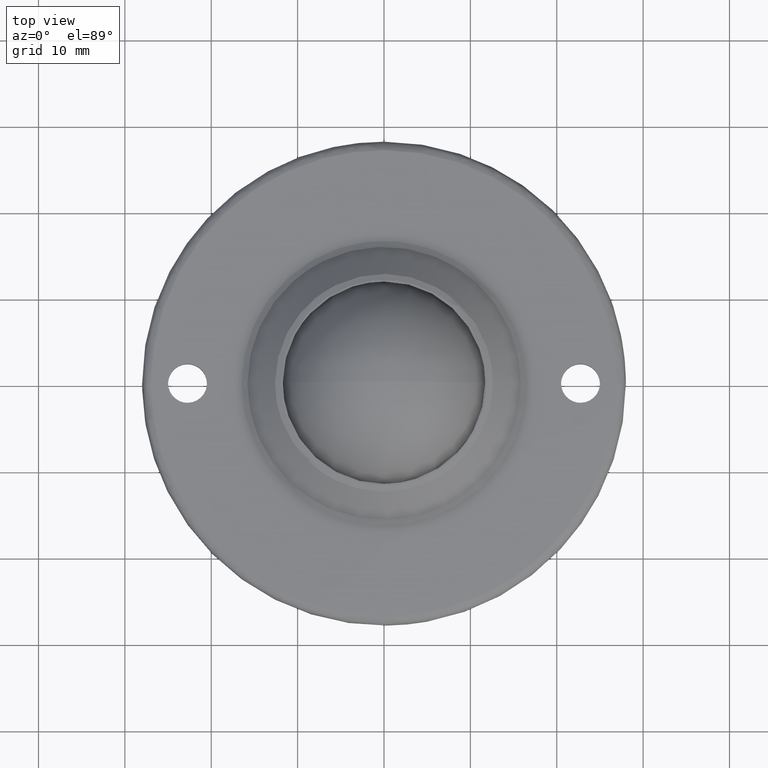
[diagram: clean part render]
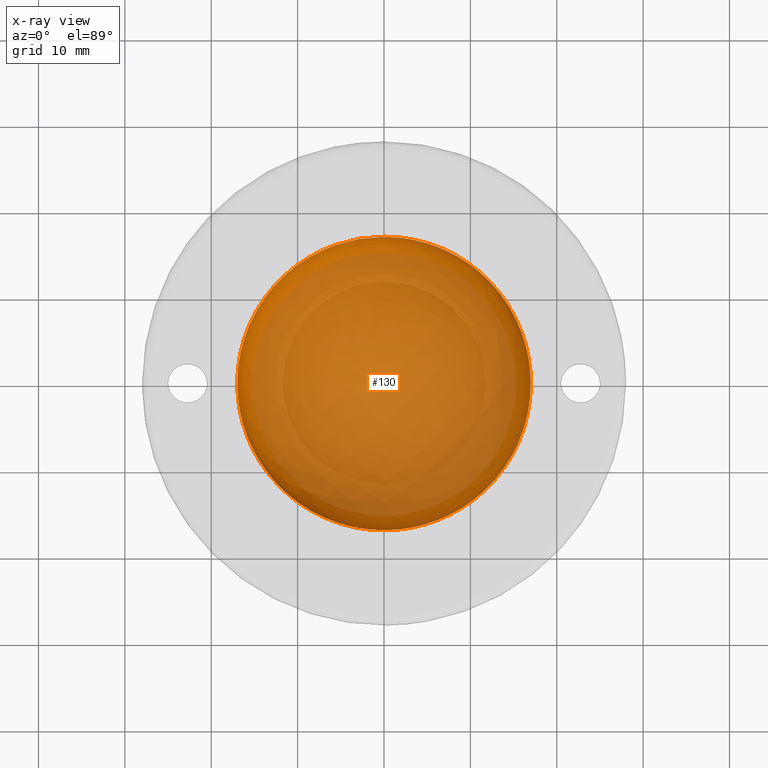
[diagram: x-ray — body ghosted, one internal face saturated and labeled with its STEP entity id]
A machine part, top view, then the same camera in x-ray: the body is ghosted and one INTERNAL B-rep face — a face not visible from any outside direction — is saturated and labeled: STEP entity #130.
In plain terms, the highlighted face is a freeform B-spline surface patch.
Its self-contained STEP definition (entity closure, byte-faithful):
#5=CARTESIAN_POINT('',(-11.334635490466281,11.334635490466276,8.816231089761276));
#6=CARTESIAN_POINT('',(-10.203985465122045,13.605313953496056,6.550246684795860));
#7=CARTESIAN_POINT('',(-4.253420275753641,17.013681103014559,3.148925479282639));
#8=CARTESIAN_POINT('',(4.253420275753639,17.013681103014559,3.148925479282653));
#9=CARTESIAN_POINT('',(10.203985465122038,13.605313953496056,6.550246684795885));
#10=CARTESIAN_POINT('',(11.334635490466269,11.334635490466276,8.816231089761295));
#11=CARTESIAN_POINT('',(-13.605313953496061,10.203985465122042,6.550246684795860));
#12=CARTESIAN_POINT('',(-12.760260827260918,12.760260827260918,3.148925479282632));
#13=CARTESIAN_POINT('',(-5.675141720384461,17.025425161153397,-2.526204089594780));
#14=CARTESIAN_POINT('',(5.675141720384471,17.025425161153397,-2.526204089594759));
#15=CARTESIAN_POINT('',(12.760260827260918,12.760260827260918,3.148925479282660));
#16=CARTESIAN_POINT('',(13.605313953496053,10.203985465122042,6.550246684795888));
#17=CARTESIAN_POINT('',(-17.013681103014559,4.253420275753640,3.148925479282628));
#18=CARTESIAN_POINT('',(-17.025425161153390,5.675141720384465,-2.526204089594788));
#19=CARTESIAN_POINT('',(-8.524480992100152,8.524480992100170,-13.899999999999959));
#20=CARTESIAN_POINT('',(8.524480992100187,8.524480992100170,-13.899999999999929));
#21=CARTESIAN_POINT('',(17.025425161153404,5.675141720384465,-2.526204089594752));
#22=CARTESIAN_POINT('',(17.013681103014559,4.253420275753640,3.148925479282664));
#23=CARTESIAN_POINT('',(-17.013681103014559,-4.253420275753640,3.148925479282628));
#24=CARTESIAN_POINT('',(-17.025425161153390,-5.675141720384465,-2.526204089594788));
#25=CARTESIAN_POINT('',(-8.524480992100152,-8.524480992100170,-13.899999999999959));
#26=CARTESIAN_POINT('',(8.524480992100187,-8.524480992100170,-13.899999999999929));
#27=CARTESIAN_POINT('',(17.025425161153404,-5.675141720384465,-2.526204089594752));
#28=CARTESIAN_POINT('',(17.013681103014559,-4.253420275753640,3.148925479282664));
#29=CARTESIAN_POINT('',(-13.605313953496061,-10.203985465122042,6.550246684795860));
#30=CARTESIAN_POINT('',(-12.760260827260918,-12.760260827260918,3.148925479282632));
#31=CARTESIAN_POINT('',(-5.675141720384461,-17.025425161153397,-2.526204089594780));
#32=CARTESIAN_POINT('',(5.675141720384471,-17.025425161153397,-2.526204089594759));
#33=CARTESIAN_POINT('',(12.760260827260918,-12.760260827260918,3.148925479282660));
#34=CARTESIAN_POINT('',(13.605313953496053,-10.203985465122042,6.550246684795888));
#35=CARTESIAN_POINT('',(-11.334635490466281,-11.334635490466276,8.816231089761276));
#36=CARTESIAN_POINT('',(-10.203985465122045,-13.605313953496056,6.550246684795860));
#37=CARTESIAN_POINT('',(-4.253420275753641,-17.013681103014559,3.148925479282639));
#38=CARTESIAN_POINT('',(4.253420275753639,-17.013681103014559,3.148925479282653));
#39=CARTESIAN_POINT('',(10.203985465122038,-13.605313953496056,6.550246684795885));
#40=CARTESIAN_POINT('',(11.334635490466269,-11.334635490466276,8.816231089761295));
#48=(BOUNDED_SURFACE()B_SPLINE_SURFACE(2,2,((#5,#11,#17,#23,#29,#35),(#6,#12,#18,#24,#30,#36),(#7,#13,#19,#25,#31,#37),(#8,#14,#20,#26,#32,#38),(#9,#15,#21,#27,#33,#39),(#10,#16,#22,#28,#34,#40)),.UNSPECIFIED.,.F.,.F.,.U.)B_SPLINE_SURFACE_WITH_KNOTS((3,1,1,1,3),(3,1,1,1,3),(0.0,15.147652576948991,30.295305153897989,45.442957730846992,60.590610307795977),(0.0,15.147652576948991,30.295305153897981,45.442957730846970,60.590610307795963),.UNSPECIFIED.)GEOMETRIC_REPRESENTATION_ITEM()RATIONAL_B_SPLINE_SURFACE(((3.008294708469534,2.506221031352150,2.004147354234767,2.004147354234767,2.506221031352150,3.008294708469534),(2.506221031352150,2.004147354234767,1.502073677117384,1.502073677117384,2.004147354234767,2.506221031352150),(2.004147354234767,1.502073677117384,1.0,1.0,1.502073677117384,2.004147354234767),(2.004147354234767,1.502073677117384,1.0,1.0,1.502073677117384,2.004147354234767),(2.506221031352150,2.004147354234767,1.502073677117384,1.502073677117384,2.004147354234767,2.506221031352150),(3.008294708469534,2.506221031352150,2.004147354234767,2.004147354234767,2.506221031352150,3.008294708469534)))REPRESENTATION_ITEM('')SURFACE());
#49=CARTESIAN_POINT('',(-0.000000762760390,-16.994247498843489,2.300000000000000));
#50=VERTEX_POINT('',#49);
#51=CARTESIAN_POINT('',(-16.994247498843499,0.0,2.300000000000000));
#52=VERTEX_POINT('',#51);
#53=CARTESIAN_POINT('',(-0.000000762760390,-16.994247498843489,2.300000000000000));
#54=CARTESIAN_POINT('',(-0.799443292268459,-16.994283565085521,2.300000000000003));
#55=CARTESIAN_POINT('',(-2.259286606333465,-16.891043461560660,2.299999999999995));
#56=CARTESIAN_POINT('',(-4.375191983132027,-16.463408103075380,2.300000000000003));
#57=CARTESIAN_POINT('',(-6.590666541173472,-15.731583210942031,2.300000000000007));
#58=CARTESIAN_POINT('',(-8.865500941492098,-14.586557006617060,2.300000000000000));
#59=CARTESIAN_POINT('',(-10.866977137789540,-13.130439792691490,2.299999999999989));
#60=CARTESIAN_POINT('',(-12.354463366329130,-11.714176089995179,2.299999999999987));
#61=CARTESIAN_POINT('',(-13.708616169983300,-10.124809377419471,2.300000000000027));
#62=CARTESIAN_POINT('',(-14.925591660948820,-8.254205666523118,2.299999999999960));
#63=CARTESIAN_POINT('',(-15.883044290122429,-6.163740896452888,2.299999999999983));
#64=CARTESIAN_POINT('',(-16.461255024920341,-4.338495718732700,2.300000000000004));
#65=CARTESIAN_POINT('',(-16.880293804104429,-2.328793062831646,2.300000000000064));
#66=CARTESIAN_POINT('',(-16.994306973551559,-0.903718100199689,2.299999999999957));
#67=CARTESIAN_POINT('',(-16.994247498843499,0.0,2.300000000000000));
#68=B_SPLINE_CURVE_WITH_KNOTS('',3,(#53,#54,#55,#56,#57,#58,#59,#60,#61,#62,#63,#64,#65,#66,#67),.UNSPECIFIED.,.F.,.U.,(4,1,1,1,1,1,1,1,1,1,1,1,4),(0.000000039882561,2.398328031003214,4.379562727716710,6.465083899960558,9.384802288707700,11.991711936748780,13.868621813226460,15.537056423876960,18.248217408198101,20.542287640034921,22.419245716968561,23.983397604961119,26.694542993847001),.UNSPECIFIED.);
#69=EDGE_CURVE('',#50,#52,#68,.T.);
#70=ORIENTED_EDGE('',*,*,#69,.F.);
#71=CARTESIAN_POINT('',(16.994247498843499,0.0,2.300000000000000));
#72=VERTEX_POINT('',#71);
#73=CARTESIAN_POINT('',(16.994247498843499,0.0,2.300000000000000));
#74=CARTESIAN_POINT('',(16.994533747505830,-1.286093366021498,2.300000000000022));
#75=CARTESIAN_POINT('',(16.784091829372549,-3.128164407151562,2.299999999999965));
#76=CARTESIAN_POINT('',(16.119886628884391,-5.471899549665270,2.300000000000025));
#77=CARTESIAN_POINT('',(15.350487481390971,-7.413358175182760,2.299999999999962));
#78=CARTESIAN_POINT('',(14.221989729227330,-9.419703337706237,2.300000000000006));
#79=CARTESIAN_POINT('',(12.635922368487851,-11.452053059215300,2.300000000000019));
#80=CARTESIAN_POINT('',(11.100310724190690,-12.923065754872210,2.300000000000002));
#81=CARTESIAN_POINT('',(9.375691642152676,-14.218589132623929,2.299999999999963));
#82=CARTESIAN_POINT('',(7.482486126475254,-15.329854572377750,2.300000000000040));
#83=CARTESIAN_POINT('',(5.280878604093258,-16.210249418622141,2.299999999999999));
#84=CARTESIAN_POINT('',(2.745874466075760,-16.836969995594352,2.299999999999937));
#85=CARTESIAN_POINT('',(1.042756908365047,-16.994362634483050,2.300000000000112));
#86=CARTESIAN_POINT('',(-0.000000762760390,-16.994247498843489,2.300000000000000));
#87=B_SPLINE_CURVE_WITH_KNOTS('',3,(#73,#74,#75,#76,#77,#78,#79,#80,#81,#82,#83,#84,#85,#86),.UNSPECIFIED.,.F.,.U.,(4,1,1,1,1,1,1,1,1,1,1,4),(0.000000039828425,3.858192629543161,5.526602501724817,7.299289744306719,10.114736379834589,12.408818491448320,15.015657521623350,16.475523967618170,18.873871521393379,21.585048895959130,23.566291830396899,26.694543853657141),.UNSPECIFIED.);
#88=EDGE_CURVE('',#72,#50,#87,.T.);
#89=ORIENTED_EDGE('',*,*,#88,.F.);
#90=CARTESIAN_POINT('',(0.000000762760427,16.994247498843482,2.300000000000000));
#91=VERTEX_POINT('',#90);
#92=CARTESIAN_POINT('',(0.000000762760427,16.994247498843482,2.300000000000000));
#93=CARTESIAN_POINT('',(1.112279011108645,16.994379918549889,2.300000000000003));
#94=CARTESIAN_POINT('',(2.850137641222299,16.822993284029831,2.300000000000002));
#95=CARTESIAN_POINT('',(5.311390935465614,16.190375640037971,2.299999999999996));
#96=CARTESIAN_POINT('',(7.222609963633763,15.432868681296320,2.300000000000005));
#97=CARTESIAN_POINT('',(9.174439445450112,14.358578032978750,2.300000000000006));
#98=CARTESIAN_POINT('',(10.752382198939920,13.210666634983850,2.299999999999954));
#99=CARTESIAN_POINT('',(12.414151909940021,11.676452947340470,2.300000000000089));
#100=CARTESIAN_POINT('',(13.756561821081350,10.071112578390940,2.299999999999947));
#101=CARTESIAN_POINT('',(15.121379794538660,7.886276828044021,2.300000000000045));
#102=CARTESIAN_POINT('',(16.048248918626101,5.777890067932407,2.299999999999977));
#103=CARTESIAN_POINT('',(16.801267910020741,3.023912215529453,2.300000000000043));
#104=CARTESIAN_POINT('',(16.994435455412749,1.181803026159106,2.299999999999918));
#105=CARTESIAN_POINT('',(16.994247498843499,0.0,2.300000000000000));
#106=B_SPLINE_CURVE_WITH_KNOTS('',3,(#92,#93,#94,#95,#96,#97,#98,#99,#100,#101,#102,#103,#104,#105),.UNSPECIFIED.,.F.,.U.,(4,1,1,1,1,1,1,1,1,1,1,4),(0.000000039877889,3.336802505743155,5.213777122003179,7.612117389943538,9.489088045797395,11.887419842617851,13.451522730857000,16.266981083221609,18.143937942887391,21.167943594675929,23.149180449702150,26.694542993846969),.UNSPECIFIED.);
#107=EDGE_CURVE('',#91,#72,#106,.T.);
#108=ORIENTED_EDGE('',*,*,#107,.F.);
#109=CARTESIAN_POINT('',(-16.994247498843499,0.0,2.300000000000000));
#110=CARTESIAN_POINT('',(-16.994287585922390,0.799443810697722,2.299999999999999));
#111=CARTESIAN_POINT('',(-16.895950423178569,2.189769799600678,2.299999999999999));
#112=CARTESIAN_POINT('',(-16.481461108159468,4.307549666820509,2.300000000000004));
#113=CARTESIAN_POINT('',(-15.891605367328649,6.130573878080682,2.300000000000000));
#114=CARTESIAN_POINT('',(-15.022077170504540,8.028939190054564,2.300000000000006));
#115=CARTESIAN_POINT('',(-14.063144442677361,9.606798412091859,2.299999999999978));
#116=CARTESIAN_POINT('',(-12.890371450469580,11.119074881384099,2.299999999999991));
#117=CARTESIAN_POINT('',(-11.594178525206690,12.480540812498480,2.300000000000039));
#118=CARTESIAN_POINT('',(-10.143929970339460,13.678189412691410,2.299999999999998));
#119=CARTESIAN_POINT('',(-8.572086369165122,14.707648081121510,2.299999999999983));
#120=CARTESIAN_POINT('',(-6.996181322401439,15.525290260033200,2.299999999999989));
#121=CARTESIAN_POINT('',(-5.014970995945480,16.289565008911250,2.300000000000091));
#122=CARTESIAN_POINT('',(-2.676383629533994,16.852530683954349,2.299999999999735));
#123=CARTESIAN_POINT('',(-0.903715580387635,16.994303258302420,2.300000000000261));
#124=CARTESIAN_POINT('',(0.000000762760427,16.994247498843482,2.300000000000000));
#125=B_SPLINE_CURVE_WITH_KNOTS('',3,(#109,#110,#111,#112,#113,#114,#115,#116,#117,#118,#119,#120,#121,#122,#123,#124),.UNSPECIFIED.,.F.,.U.,(4,1,1,1,1,1,1,1,1,1,1,1,1,4),(0.000000039831498,2.398328108254244,4.171020755387847,6.465084108150894,8.133500999050199,10.427556556149300,11.991712323062480,13.868622259846211,16.058417420428849,17.622569358835179,19.499527496182552,21.376491043562261,23.983398377473371,26.694543853657141),.UNSPECIFIED.);
#126=EDGE_CURVE('',#52,#91,#125,.T.);
#127=ORIENTED_EDGE('',*,*,#126,.F.);
#128=EDGE_LOOP('',(#70,#89,#108,#127));
#129=FACE_OUTER_BOUND('',#128,.T.);
#130=ADVANCED_FACE('',(#129),#48,.F.);